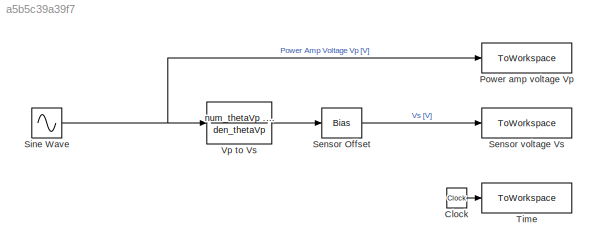
MODEL slx_a5b5c39a39f7
KIND model
CONFIG AbsTol = auto
CONFIG EnableMultiTasking = off
CONFIG FixedStep = auto
CONFIG MaxStep = auto
CONFIG MinStep = auto
CONFIG RelTol = 1e-3
CONFIG SampleTimeConstraint = Unconstrained
CONFIG SolverName = VariableStepAuto
CONFIG StartTime = 0.0
CONFIG StopTime = 10
BLOCK [Clock] Clock
BLOCK [ToWorkspace] Power amp voltage Vp
  FixptAsFi = on
  MaxDataPoints = inf
  SampleTime = -1
  VariableName = u
BLOCK [Bias] Sensor Offset
  Bias = 2.5
  NameLocation = top
  SaturateOnIntegerOverflow = off
BLOCK [ToWorkspace] Sensor voltage Vs
  FixptAsFi = on
  MaxDataPoints = inf
  SampleTime = -1
  VariableName = y
BLOCK [Sin] Sine Wave
  Frequency = 2*pi
  SampleTime = 0
BLOCK [ToWorkspace] Time
  FixptAsFi = on
  MaxDataPoints = inf
  SampleTime = -1
  VariableName = t
BLOCK [TransferFcn] Vp to Vs
  Denominator = den_thetaVp
  NameLocation = top
  Numerator = num_thetaVp .* Ks
LINE Clock:1 -> Time:1
LINE Sensor Offset:1 -> Sensor voltage Vs:1
NET Sine Wave:1 -> Power amp voltage Vp:1, Vp to Vs:1
LINE Vp to Vs:1 -> Sensor Offset:1
note: NET lines group one-source signal fan-out (src -> all destinations, sorted); 1:1 wires keep LINE
